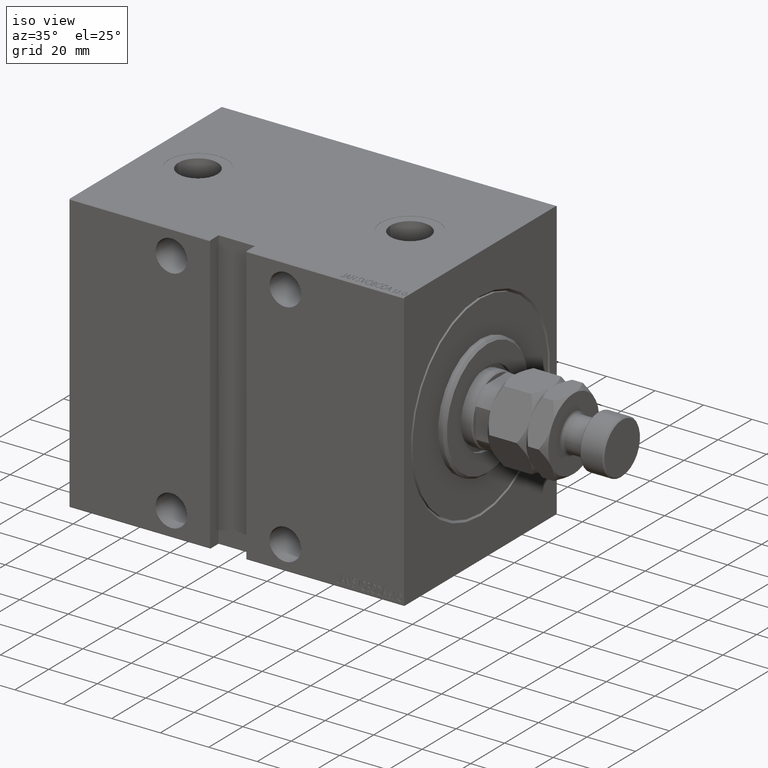
[diagram: clean part render]
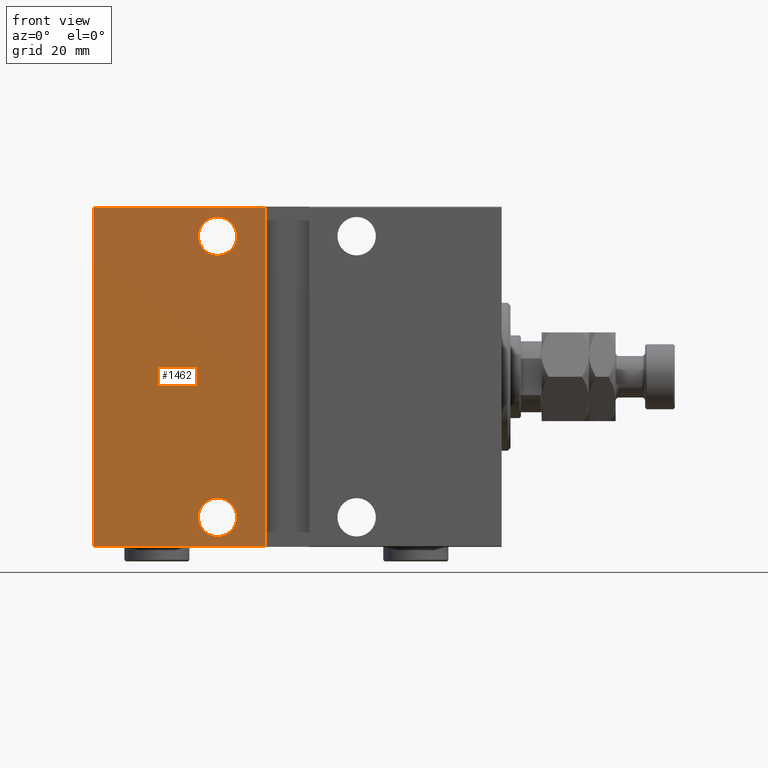
[diagram: tour spotlight — one face highlighted and labeled with its STEP entity id]
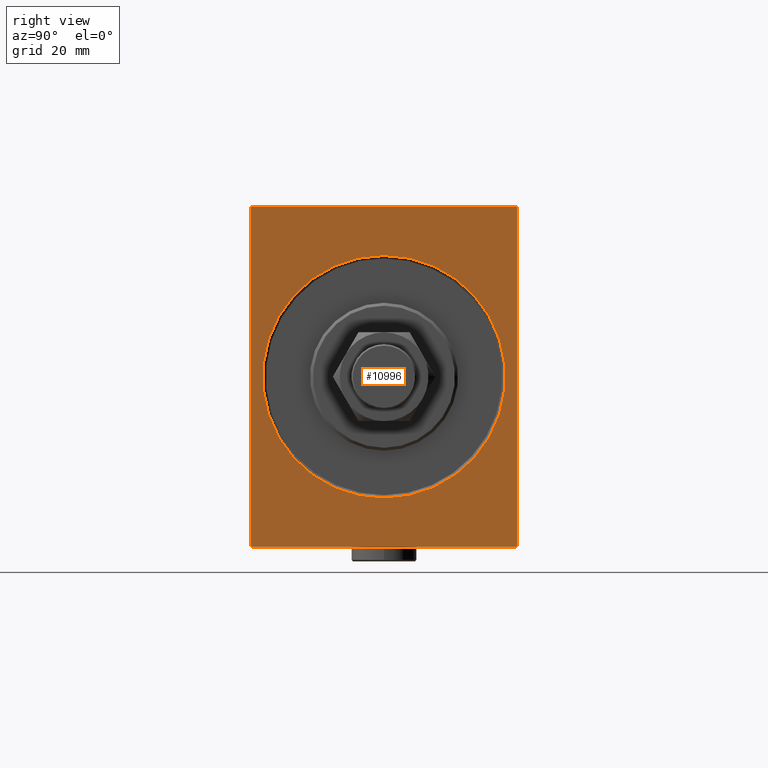
[diagram: tour spotlight — one face highlighted and labeled with its STEP entity id]
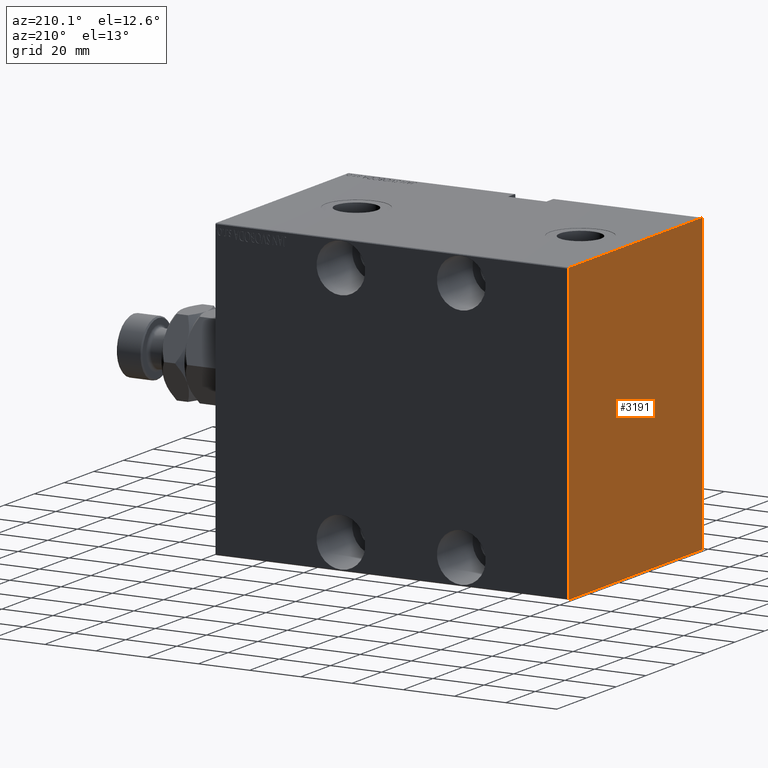
[diagram: tour spotlight — one face highlighted and labeled with its STEP entity id]
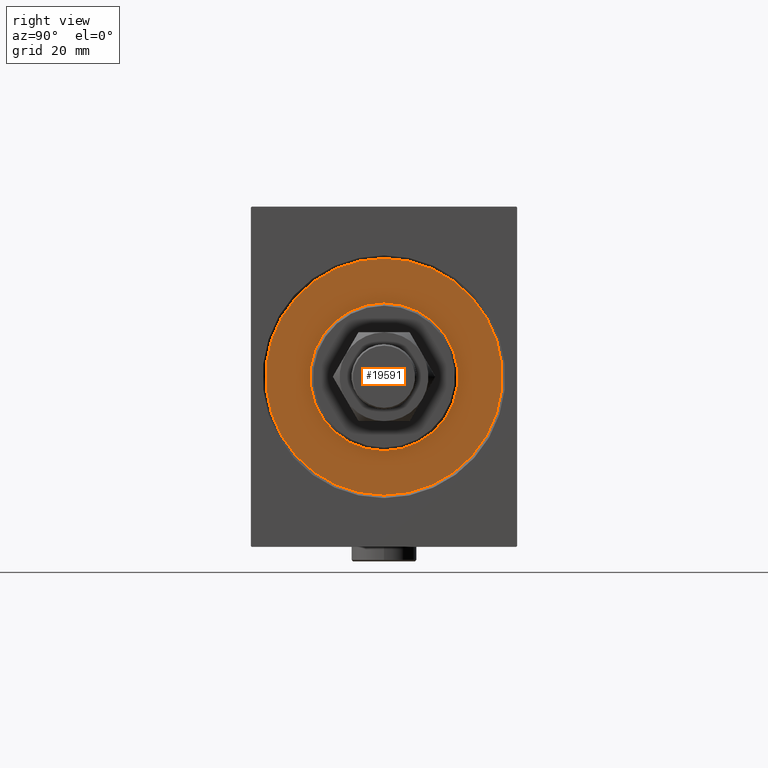
[diagram: tour spotlight — one face highlighted and labeled with its STEP entity id]
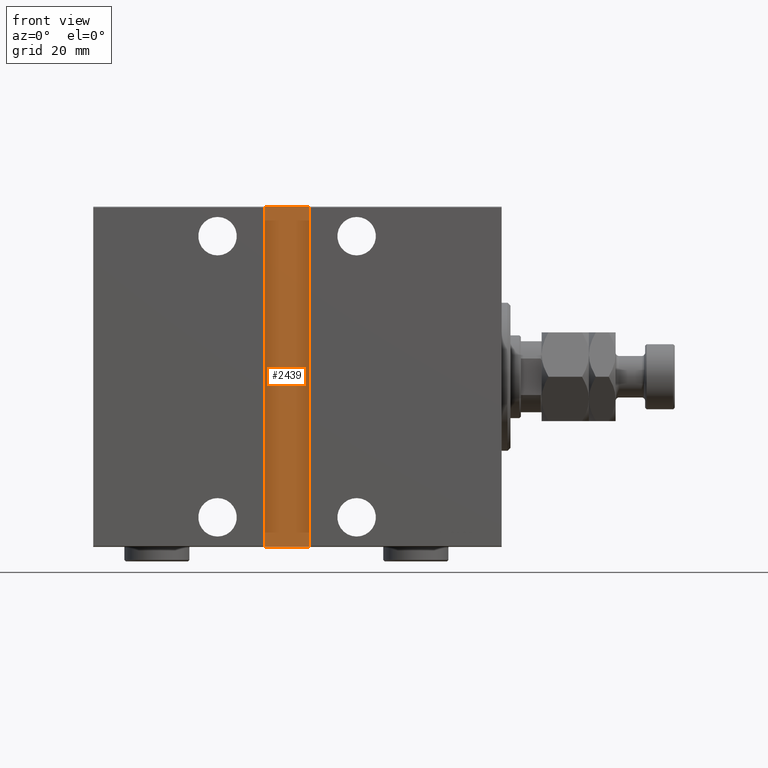
[diagram: tour spotlight — one face highlighted and labeled with its STEP entity id]
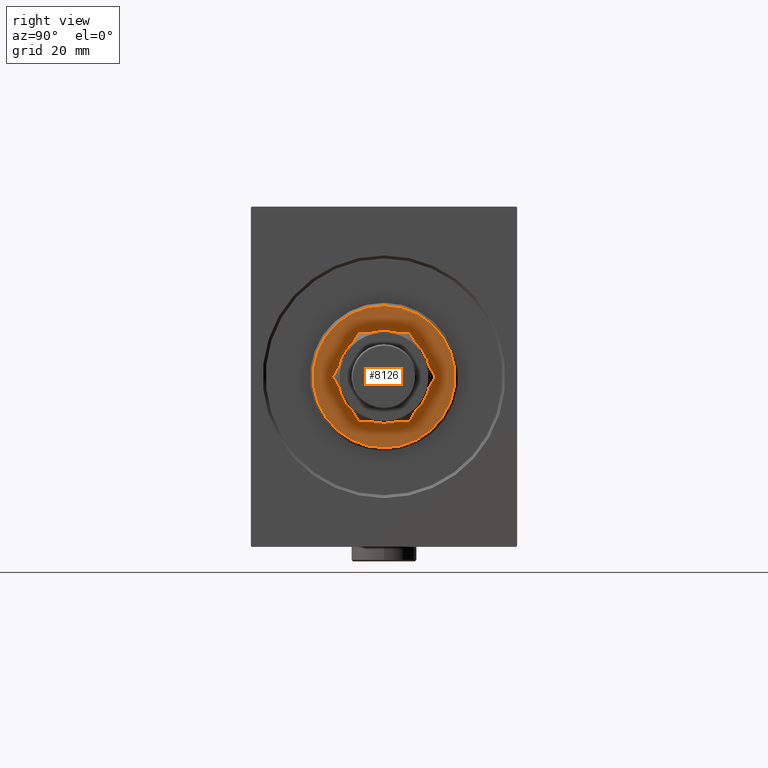
[diagram: tour spotlight — one face highlighted and labeled with its STEP entity id]
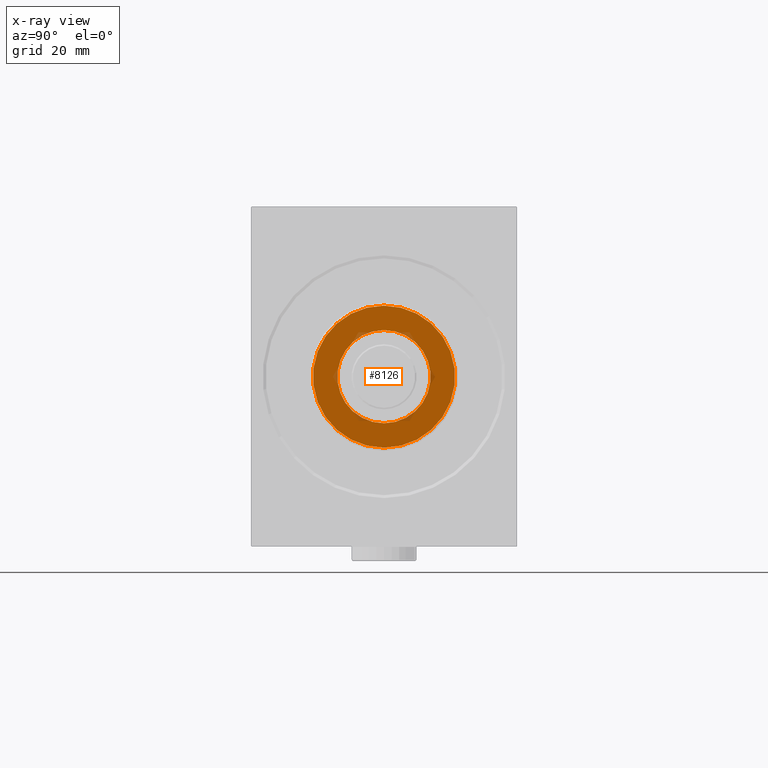
[diagram: x-ray of the same camera — body ghosted, this tour face saturated]
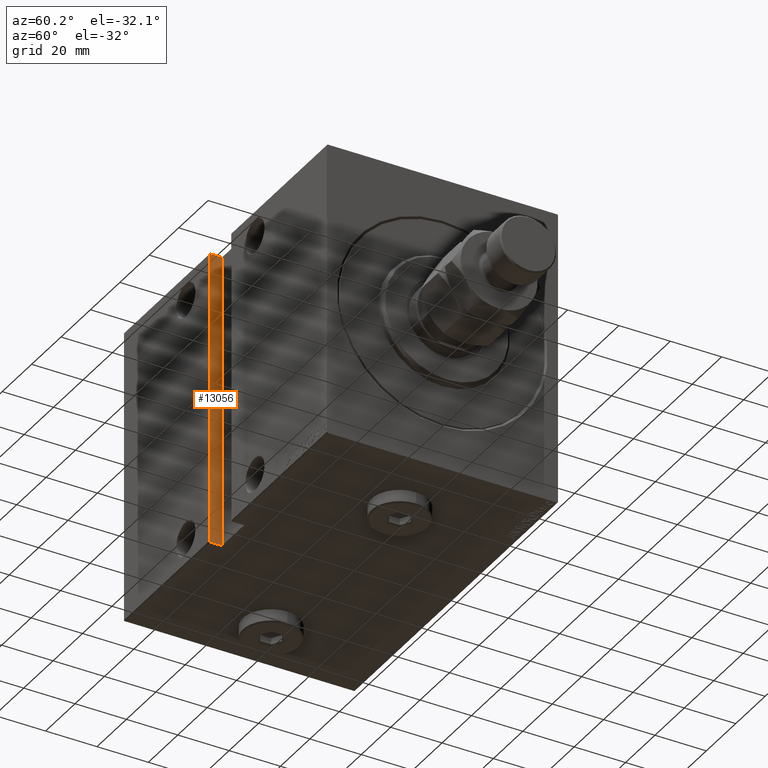
[diagram: tour spotlight — one face highlighted and labeled with its STEP entity id]
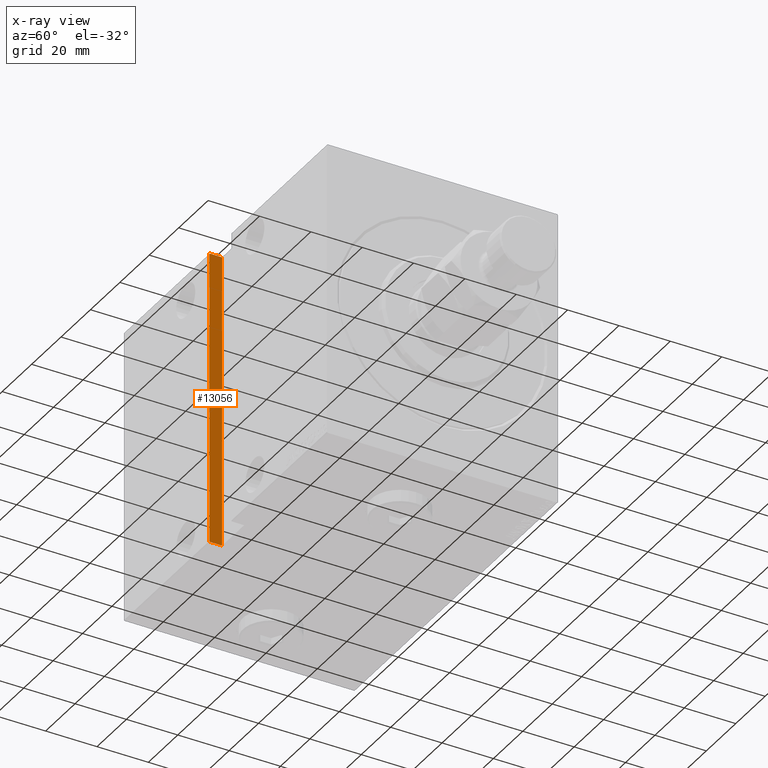
[diagram: x-ray of the same camera — body ghosted, this tour face saturated]
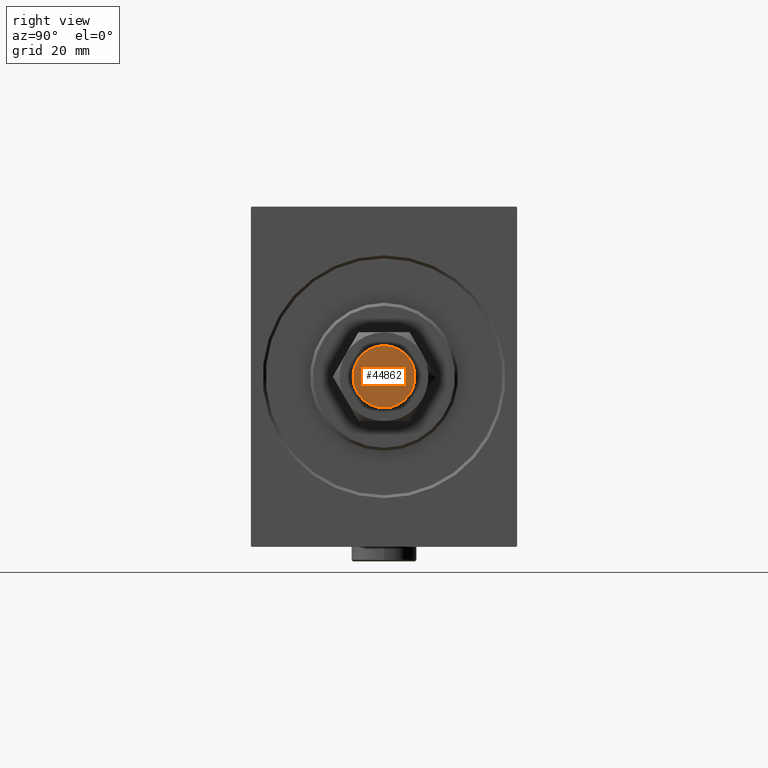
[diagram: tour spotlight — one face highlighted and labeled with its STEP entity id]
A machine part: a face-by-face anatomy tour. The part has 964 B-rep faces; the first image is the clean iso view, then the 8 largest visible faces are spotlighted one at a time (largest first), each with its STEP entity span.

Face 1 — front view, entity #1462. In plain terms, the highlighted planar face has unit normal (0, 1, 0).
Definition (entity closure, byte-faithful):
#300 = EDGE_CURVE ( 'NONE', #32760, #31737, #23237, .T. ) ;
#812 = EDGE_CURVE ( 'NONE', #30409, #31737, #42953, .T. ) ;
#942 = LINE ( 'NONE', #7931, #5033 ) ;
#1383 = CIRCLE ( 'NONE', #27394, 6.500000000000005329 ) ;
#1462 = ADVANCED_FACE ( 'NONE', ( #26685, #16467, #23202 ), #37407, .F. ) ;
#1633 = CARTESIAN_POINT ( 'NONE',  ( 138.0000000000000000, 45.00000000000001421, 57.20000000000001705 ) ) ;
#2003 = DIRECTION ( 'NONE',  ( 0.000000000000000000, -0.000000000000000000, -1.000000000000000000 ) ) ;
#2554 = DIRECTION ( 'NONE',  ( 0.000000000000000000, -1.000000000000000000, 0.000000000000000000 ) ) ;
#3330 = VERTEX_POINT ( 'NONE', #1633 ) ;
#3527 = CARTESIAN_POINT ( 'NONE',  ( 95.99999999999997158, 45.00000000000000711, -47.49999999999998579 ) ) ;
#3717 = ORIENTED_EDGE ( 'NONE', *, *, #300, .F. ) ;
#4007 = ORIENTED_EDGE ( 'NONE', *, *, #44277, .F. ) ;
#4578 = CARTESIAN_POINT ( 'NONE',  ( 95.99999999999997158, 45.00000000000000711, -40.99999999999998579 ) ) ;
#4953 = AXIS2_PLACEMENT_3D ( 'NONE', #5499, #19708, #2003 ) ;
#5033 = VECTOR ( 'NONE', #24292, 1000.000000000000000 ) ;
#5404 = EDGE_CURVE ( 'NONE', #8981, #33978, #45980, .T. ) ;
#5499 = CARTESIAN_POINT ( 'NONE',  ( 138.0000000000000000, 45.00000000000001421, -57.50000000000000711 ) ) ;
#6281 = DIRECTION ( 'NONE',  ( 0.000000000000000000, 0.000000000000000000, -1.000000000000000000 ) ) ;
#7931 = CARTESIAN_POINT ( 'NONE',  ( 138.0000000000000000, 45.00000000000001421, 57.20000000000004547 ) ) ;
#8413 = DIRECTION ( 'NONE',  ( 0.000000000000000000, -1.000000000000000000, 0.000000000000000000 ) ) ;
#8981 = VERTEX_POINT ( 'NONE', #35083 ) ;
#9318 = CARTESIAN_POINT ( 'NONE',  ( 138.0000000000000000, 45.00000000000001421, -57.20000000000001705 ) ) ;
#10771 = ORIENTED_EDGE ( 'NONE', *, *, #812, .T. ) ;
#10983 = DIRECTION ( 'NONE',  ( 0.000000000000000000, -1.000000000000000000, 0.000000000000000000 ) ) ;
#11856 = CARTESIAN_POINT ( 'NONE',  ( 96.00000000000000000, 45.00000000000002132, 41.00000000000000711 ) ) ;
#12271 = CARTESIAN_POINT ( 'NONE',  ( 96.00000000000000000, 45.00000000000002132, 47.50000000000001421 ) ) ;
#12477 = CARTESIAN_POINT ( 'NONE',  ( 79.99999999999997158, 45.00000000000002132, -57.20000000000001705 ) ) ;
#12605 = DIRECTION ( 'NONE',  ( 0.000000000000000000, 0.000000000000000000, -1.000000000000000000 ) ) ;
#13757 = EDGE_LOOP ( 'NONE', ( #4007, #10771, #3717, #14530 ) ) ;
#14530 = ORIENTED_EDGE ( 'NONE', *, *, #16035, .T. ) ;
#15353 = VECTOR ( 'NONE', #22219, 1000.000000000000000 ) ;
#15787 = DIRECTION ( 'NONE',  ( 0.000000000000000000, 0.000000000000000000, -1.000000000000000000 ) ) ;
#16035 = EDGE_CURVE ( 'NONE', #32760, #3330, #942, .T. ) ;
#16467 = FACE_BOUND ( 'NONE', #23816, .T. ) ;
#16785 = ORIENTED_EDGE ( 'NONE', *, *, #5404, .T. ) ;
#16958 = CARTESIAN_POINT ( 'NONE',  ( 96.00000000000000000, 45.00000000000002132, 54.00000000000001421 ) ) ;
#17589 = AXIS2_PLACEMENT_3D ( 'NONE', #36813, #2554, #6281 ) ;
#18002 = DIRECTION ( 'NONE',  ( 1.206764157201255812E-16, 1.206764157201255812E-16, -1.000000000000000000 ) ) ;
#18518 = EDGE_CURVE ( 'NONE', #43126, #23727, #1383, .T. ) ;
#19013 = LINE ( 'NONE', #43461, #24476 ) ;
#19708 = DIRECTION ( 'NONE',  ( 0.000000000000000000, -1.000000000000000000, 0.000000000000000000 ) ) ;
#20784 = ORIENTED_EDGE ( 'NONE', *, *, #18518, .T. ) ;
#21764 = CARTESIAN_POINT ( 'NONE',  ( 138.0000000000000000, 45.00000000000001421, -57.20000000000001705 ) ) ;
#22219 = DIRECTION ( 'NONE',  ( -1.000000000000000000, 0.000000000000000000, 0.000000000000000000 ) ) ;
#23202 = FACE_OUTER_BOUND ( 'NONE', #13757, .T. ) ;
#23237 = LINE ( 'NONE', #37442, #32450 ) ;
#23727 = VERTEX_POINT ( 'NONE', #16958 ) ;
#23816 = EDGE_LOOP ( 'NONE', ( #41140, #20784 ) ) ;
#24292 = DIRECTION ( 'NONE',  ( 1.000000000000000000, 0.000000000000000000, 0.000000000000000000 ) ) ;
#24476 = VECTOR ( 'NONE', #40198, 1000.000000000000000 ) ;
#26685 = FACE_BOUND ( 'NONE', #36251, .T. ) ;
#26917 = DIRECTION ( 'NONE',  ( 0.000000000000000000, -1.000000000000000000, 0.000000000000000000 ) ) ;
#27394 = AXIS2_PLACEMENT_3D ( 'NONE', #12271, #26917, #15787 ) ;
#30409 = VERTEX_POINT ( 'NONE', #9318 ) ;
#31737 = VERTEX_POINT ( 'NONE', #12477 ) ;
#32450 = VECTOR ( 'NONE', #18002, 1000.000000000000000 ) ;
#32591 = AXIS2_PLACEMENT_3D ( 'NONE', #3527, #10983, #35209 ) ;
#32760 = VERTEX_POINT ( 'NONE', #45528 ) ;
#33414 = EDGE_CURVE ( 'NONE', #33978, #8981, #37650, .T. ) ;
#33978 = VERTEX_POINT ( 'NONE', #4578 ) ;
#35083 = CARTESIAN_POINT ( 'NONE',  ( 95.99999999999997158, 45.00000000000000711, -53.99999999999999289 ) ) ;
#35209 = DIRECTION ( 'NONE',  ( 0.000000000000000000, 0.000000000000000000, -1.000000000000000000 ) ) ;
#36251 = EDGE_LOOP ( 'NONE', ( #40524, #16785 ) ) ;
#36813 = CARTESIAN_POINT ( 'NONE',  ( 95.99999999999997158, 45.00000000000000711, -47.49999999999998579 ) ) ;
#37407 = PLANE ( 'NONE',  #4953 ) ;
#37442 = CARTESIAN_POINT ( 'NONE',  ( 79.99999999999997158, 45.00000000000002132, -57.50000000000010658 ) ) ;
#37650 = CIRCLE ( 'NONE', #17589, 6.500000000000005329 ) ;
#40071 = CIRCLE ( 'NONE', #46034, 6.500000000000005329 ) ;
#40198 = DIRECTION ( 'NONE',  ( 0.000000000000000000, 0.000000000000000000, 1.000000000000000000 ) ) ;
#40524 = ORIENTED_EDGE ( 'NONE', *, *, #33414, .T. ) ;
#41140 = ORIENTED_EDGE ( 'NONE', *, *, #44091, .T. ) ;
#41217 = CARTESIAN_POINT ( 'NONE',  ( 96.00000000000000000, 45.00000000000002132, 47.50000000000001421 ) ) ;
#42953 = LINE ( 'NONE', #21764, #15353 ) ;
#43126 = VERTEX_POINT ( 'NONE', #11856 ) ;
#43461 = CARTESIAN_POINT ( 'NONE',  ( 138.0000000000000000, 45.00000000000001421, -57.50000000000000711 ) ) ;
#44091 = EDGE_CURVE ( 'NONE', #23727, #43126, #40071, .T. ) ;
#44277 = EDGE_CURVE ( 'NONE', #30409, #3330, #19013, .T. ) ;
#45528 = CARTESIAN_POINT ( 'NONE',  ( 79.99999999999995737, 45.00000000000000711, 57.20000000000004547 ) ) ;
#45980 = CIRCLE ( 'NONE', #32591, 6.500000000000005329 ) ;
#46034 = AXIS2_PLACEMENT_3D ( 'NONE', #41217, #8413, #12605 ) ;

Face 2 — right view, entity #10996. In plain terms, the highlighted planar face has unit normal (-1, 0, 0).
Definition (entity closure, byte-faithful):
#2887 = DIRECTION ( 'NONE',  ( -0.000000000000000000, 0.000000000000000000, -1.000000000000000000 ) ) ;
#3116 = CARTESIAN_POINT ( 'NONE',  ( 0.000000000000000000, 0.000000000000000000, 0.000000000000000000 ) ) ;
#3470 = ORIENTED_EDGE ( 'NONE', *, *, #23250, .T. ) ;
#3659 = VERTEX_POINT ( 'NONE', #27660 ) ;
#3911 = EDGE_CURVE ( 'NONE', #26100, #36475, #33923, .T. ) ;
#4770 = VECTOR ( 'NONE', #28352, 1000.000000000000114 ) ;
#4925 = ORIENTED_EDGE ( 'NONE', *, *, #26993, .F. ) ;
#5306 = CARTESIAN_POINT ( 'NONE',  ( 0.000000000000000000, 44.69999999999998863, -57.50000000000000711 ) ) ;
#6419 = CARTESIAN_POINT ( 'NONE',  ( 0.000000000000000000, 0.000000000000000000, 0.000000000000000000 ) ) ;
#6663 = DIRECTION ( 'NONE',  ( 0.000000000000000000, 0.000000000000000000, -1.000000000000000000 ) ) ;
#7664 = VERTEX_POINT ( 'NONE', #28128 ) ;
#8221 = CARTESIAN_POINT ( 'NONE',  ( 0.000000000000000000, 45.00000000000001421, -57.20000000000001705 ) ) ;
#8864 = VECTOR ( 'NONE', #43128, 1000.000000000000000 ) ;
#9196 = CARTESIAN_POINT ( 'NONE',  ( 0.000000000000000000, -44.70000000000000284, -57.50000000000002132 ) ) ;
#9816 = EDGE_CURVE ( 'NONE', #11287, #17991, #12761, .T. ) ;
#9877 = DIRECTION ( 'NONE',  ( 0.000000000000000000, -0.7071067811865802133, 0.7071067811865149322 ) ) ;
#10692 = DIRECTION ( 'NONE',  ( 1.000000000000000000, 0.000000000000000000, -0.000000000000000000 ) ) ;
#10719 = LINE ( 'NONE', #39117, #25208 ) ;
#10996 = ADVANCED_FACE ( 'NONE', ( #26879, #20830 ), #27561, .F. ) ;
#11129 = LINE ( 'NONE', #46056, #4770 ) ;
#11287 = VERTEX_POINT ( 'NONE', #23560 ) ;
#11850 = VERTEX_POINT ( 'NONE', #15719 ) ;
#12254 = VECTOR ( 'NONE', #26580, 1000.000000000000114 ) ;
#12761 = CIRCLE ( 'NONE', #14294, 41.00000000000000711 ) ;
#12871 = ORIENTED_EDGE ( 'NONE', *, *, #23510, .F. ) ;
#13226 = ORIENTED_EDGE ( 'NONE', *, *, #9816, .T. ) ;
#13298 = VERTEX_POINT ( 'NONE', #38618 ) ;
#14018 = DIRECTION ( 'NONE',  ( 0.000000000000000000, 1.000000000000000000, 1.541976423090495140E-16 ) ) ;
#14068 = ORIENTED_EDGE ( 'NONE', *, *, #39716, .T. ) ;
#14294 = AXIS2_PLACEMENT_3D ( 'NONE', #6419, #16918, #6663 ) ;
#14339 = LINE ( 'NONE', #42700, #31269 ) ;
#14979 = EDGE_LOOP ( 'NONE', ( #14068, #13226 ) ) ;
#15719 = CARTESIAN_POINT ( 'NONE',  ( 0.000000000000000000, -45.00000000000000000, 57.19999999999997442 ) ) ;
#16873 = LINE ( 'NONE', #9196, #22957 ) ;
#16918 = DIRECTION ( 'NONE',  ( 1.000000000000000000, 0.000000000000000000, -0.000000000000000000 ) ) ;
#17991 = VERTEX_POINT ( 'NONE', #33356 ) ;
#18194 = EDGE_CURVE ( 'NONE', #13298, #39778, #34967, .T. ) ;
#19144 = AXIS2_PLACEMENT_3D ( 'NONE', #36520, #10692, #35851 ) ;
#20830 = FACE_OUTER_BOUND ( 'NONE', #40472, .T. ) ;
#21450 = CARTESIAN_POINT ( 'NONE',  ( 0.000000000000000000, -45.00000000000000000, -57.50000000000002132 ) ) ;
#21928 = LINE ( 'NONE', #39409, #8864 ) ;
#22803 = CARTESIAN_POINT ( 'NONE',  ( 0.000000000000000000, -44.69999999999994600, 57.49999999999999289 ) ) ;
#22957 = VECTOR ( 'NONE', #9877, 999.9999999999998863 ) ;
#23097 = ORIENTED_EDGE ( 'NONE', *, *, #3911, .F. ) ;
#23250 = EDGE_CURVE ( 'NONE', #7664, #36475, #21928, .T. ) ;
#23510 = EDGE_CURVE ( 'NONE', #7664, #38411, #10719, .T. ) ;
#23560 = CARTESIAN_POINT ( 'NONE',  ( 0.000000000000000000, 5.021051876504148963E-15, -41.00000000000000711 ) ) ;
#24070 = DIRECTION ( 'NONE',  ( 1.000000000000000000, 0.000000000000000000, -0.000000000000000000 ) ) ;
#24111 = CARTESIAN_POINT ( 'NONE',  ( 0.000000000000000000, 45.00000000000001421, -57.50000000000000711 ) ) ;
#24357 = VECTOR ( 'NONE', #30659, 1000.000000000000000 ) ;
#24665 = ORIENTED_EDGE ( 'NONE', *, *, #18194, .F. ) ;
#24756 = ORIENTED_EDGE ( 'NONE', *, *, #27728, .T. ) ;
#25208 = VECTOR ( 'NONE', #35879, 1000.000000000000000 ) ;
#26100 = VERTEX_POINT ( 'NONE', #8221 ) ;
#26348 = CARTESIAN_POINT ( 'NONE',  ( 0.000000000000000000, 45.00000000000001421, 57.20000000000001705 ) ) ;
#26580 = DIRECTION ( 'NONE',  ( -0.000000000000000000, -0.7071067811865474617, -0.7071067811865474617 ) ) ;
#26879 = FACE_BOUND ( 'NONE', #14979, .T. ) ;
#26993 = EDGE_CURVE ( 'NONE', #11850, #3659, #14339, .T. ) ;
#27561 = PLANE ( 'NONE',  #29427 ) ;
#27660 = CARTESIAN_POINT ( 'NONE',  ( 0.000000000000000000, -45.00000000000000000, -57.20000000000003126 ) ) ;
#27728 = EDGE_CURVE ( 'NONE', #11850, #38411, #11129, .T. ) ;
#28128 = CARTESIAN_POINT ( 'NONE',  ( 0.000000000000000000, 44.70000000000001705, 57.50000000000001421 ) ) ;
#28352 = DIRECTION ( 'NONE',  ( -0.000000000000000000, 0.7071067811865474617, 0.7071067811865474617 ) ) ;
#28805 = CIRCLE ( 'NONE', #19144, 41.00000000000000711 ) ;
#29427 = AXIS2_PLACEMENT_3D ( 'NONE', #3116, #24070, #2887 ) ;
#29942 = EDGE_CURVE ( 'NONE', #26100, #39778, #41246, .T. ) ;
#30555 = CARTESIAN_POINT ( 'NONE',  ( 0.000000000000000000, 45.00000000000001421, -57.20000000000001705 ) ) ;
#30659 = DIRECTION ( 'NONE',  ( 0.000000000000000000, 0.000000000000000000, 1.000000000000000000 ) ) ;
#31269 = VECTOR ( 'NONE', #42234, 1000.000000000000000 ) ;
#32647 = VECTOR ( 'NONE', #14018, 1000.000000000000000 ) ;
#33356 = CARTESIAN_POINT ( 'NONE',  ( 0.000000000000000000, 0.000000000000000000, 41.00000000000000711 ) ) ;
#33923 = LINE ( 'NONE', #24111, #24357 ) ;
#34967 = LINE ( 'NONE', #21450, #32647 ) ;
#35851 = DIRECTION ( 'NONE',  ( 0.000000000000000000, 0.000000000000000000, -1.000000000000000000 ) ) ;
#35879 = DIRECTION ( 'NONE',  ( 0.000000000000000000, -1.000000000000000000, -2.312964634635742957E-16 ) ) ;
#36475 = VERTEX_POINT ( 'NONE', #26348 ) ;
#36520 = CARTESIAN_POINT ( 'NONE',  ( 0.000000000000000000, 0.000000000000000000, 0.000000000000000000 ) ) ;
#38411 = VERTEX_POINT ( 'NONE', #22803 ) ;
#38618 = CARTESIAN_POINT ( 'NONE',  ( 0.000000000000000000, -44.70000000000000284, -57.50000000000002132 ) ) ;
#39117 = CARTESIAN_POINT ( 'NONE',  ( 0.000000000000000000, 45.00000000000001421, 57.50000000000001421 ) ) ;
#39409 = CARTESIAN_POINT ( 'NONE',  ( 0.000000000000000000, 44.70000000000001705, 57.50000000000001421 ) ) ;
#39716 = EDGE_CURVE ( 'NONE', #17991, #11287, #28805, .T. ) ;
#39778 = VERTEX_POINT ( 'NONE', #5306 ) ;
#40013 = ORIENTED_EDGE ( 'NONE', *, *, #29942, .T. ) ;
#40201 = EDGE_CURVE ( 'NONE', #13298, #3659, #16873, .T. ) ;
#40472 = EDGE_LOOP ( 'NONE', ( #12871, #3470, #23097, #40013, #24665, #43578, #4925, #24756 ) ) ;
#41246 = LINE ( 'NONE', #30555, #12254 ) ;
#42234 = DIRECTION ( 'NONE',  ( 0.000000000000000000, 0.000000000000000000, -1.000000000000000000 ) ) ;
#42700 = CARTESIAN_POINT ( 'NONE',  ( 0.000000000000000000, -45.00000000000000000, 57.49999999999999289 ) ) ;
#43128 = DIRECTION ( 'NONE',  ( -0.000000000000000000, 0.7071067811865721087, -0.7071067811865230368 ) ) ;
#43578 = ORIENTED_EDGE ( 'NONE', *, *, #40201, .T. ) ;
#46056 = CARTESIAN_POINT ( 'NONE',  ( 0.000000000000000000, -45.00000000000000000, 57.19999999999997442 ) ) ;

Face 3 — auxiliary view, entity #3191. In plain terms, the highlighted planar face has unit normal (-1, 0, 0).
Definition (entity closure, byte-faithful):
#611 = VERTEX_POINT ( 'NONE', #16225 ) ;
#940 = DIRECTION ( 'NONE',  ( 1.000000000000000000, 0.000000000000000000, -0.000000000000000000 ) ) ;
#1107 = ORIENTED_EDGE ( 'NONE', *, *, #8242, .T. ) ;
#1633 = CARTESIAN_POINT ( 'NONE',  ( 138.0000000000000000, 45.00000000000001421, 57.20000000000001705 ) ) ;
#2158 = ORIENTED_EDGE ( 'NONE', *, *, #10234, .T. ) ;
#3155 = DIRECTION ( 'NONE',  ( 0.000000000000000000, -1.000000000000000000, -2.312964634635742957E-16 ) ) ;
#3191 = ADVANCED_FACE ( 'NONE', ( #10746 ), #25166, .T. ) ;
#3330 = VERTEX_POINT ( 'NONE', #1633 ) ;
#3852 = CARTESIAN_POINT ( 'NONE',  ( 138.0000000000000000, 45.00000000000001421, 57.50000000000001421 ) ) ;
#3975 = DIRECTION ( 'NONE',  ( -0.000000000000000000, 0.000000000000000000, -1.000000000000000000 ) ) ;
#4202 = DIRECTION ( 'NONE',  ( 0.000000000000000000, 0.000000000000000000, -1.000000000000000000 ) ) ;
#4492 = CARTESIAN_POINT ( 'NONE',  ( 138.0000000000000000, -51.09999999999998721, 51.09999999999998721 ) ) ;
#4602 = CARTESIAN_POINT ( 'NONE',  ( 138.0000000000000000, 44.69999999999998863, -57.50000000000000711 ) ) ;
#5554 = EDGE_CURVE ( 'NONE', #8632, #6914, #8170, .T. ) ;
#6410 = LINE ( 'NONE', #20627, #18586 ) ;
#6914 = VERTEX_POINT ( 'NONE', #25086 ) ;
#8170 = LINE ( 'NONE', #8394, #10279 ) ;
#8242 = EDGE_CURVE ( 'NONE', #3330, #45456, #31293, .T. ) ;
#8394 = CARTESIAN_POINT ( 'NONE',  ( 138.0000000000000000, -45.00000000000000000, 57.49999999999999289 ) ) ;
#8632 = VERTEX_POINT ( 'NONE', #40283 ) ;
#8839 = LINE ( 'NONE', #29561, #28028 ) ;
#9318 = CARTESIAN_POINT ( 'NONE',  ( 138.0000000000000000, 45.00000000000001421, -57.20000000000001705 ) ) ;
#10227 = VECTOR ( 'NONE', #11260, 999.9999999999998863 ) ;
#10234 = EDGE_CURVE ( 'NONE', #22276, #8632, #29176, .T. ) ;
#10279 = VECTOR ( 'NONE', #4202, 1000.000000000000000 ) ;
#10746 = FACE_OUTER_BOUND ( 'NONE', #28177, .T. ) ;
#11260 = DIRECTION ( 'NONE',  ( -0.000000000000000000, 0.7071067811865802133, -0.7071067811865149322 ) ) ;
#11301 = VECTOR ( 'NONE', #29866, 1000.000000000000114 ) ;
#13601 = DIRECTION ( 'NONE',  ( -0.000000000000000000, -0.7071067811865721087, 0.7071067811865230368 ) ) ;
#14270 = EDGE_CURVE ( 'NONE', #38711, #30409, #8839, .T. ) ;
#14826 = EDGE_CURVE ( 'NONE', #6914, #611, #39430, .T. ) ;
#15756 = ORIENTED_EDGE ( 'NONE', *, *, #14826, .T. ) ;
#15843 = DIRECTION ( 'NONE',  ( -0.000000000000000000, 0.7071067811865474617, 0.7071067811865474617 ) ) ;
#16225 = CARTESIAN_POINT ( 'NONE',  ( 138.0000000000000000, -44.70000000000000284, -57.50000000000002132 ) ) ;
#16837 = ORIENTED_EDGE ( 'NONE', *, *, #24742, .T. ) ;
#17067 = ORIENTED_EDGE ( 'NONE', *, *, #5554, .T. ) ;
#17306 = ORIENTED_EDGE ( 'NONE', *, *, #28894, .T. ) ;
#18586 = VECTOR ( 'NONE', #45311, 1000.000000000000000 ) ;
#19013 = LINE ( 'NONE', #43461, #24476 ) ;
#20627 = CARTESIAN_POINT ( 'NONE',  ( 138.0000000000000000, -45.00000000000000000, -57.50000000000002132 ) ) ;
#22276 = VERTEX_POINT ( 'NONE', #24840 ) ;
#24476 = VECTOR ( 'NONE', #40198, 1000.000000000000000 ) ;
#24742 = EDGE_CURVE ( 'NONE', #611, #38711, #6410, .T. ) ;
#24754 = CARTESIAN_POINT ( 'NONE',  ( 138.0000000000000000, -51.09999999999794795, -51.10000000000267306 ) ) ;
#24840 = CARTESIAN_POINT ( 'NONE',  ( 138.0000000000000000, -44.69999999999994600, 57.49999999999999289 ) ) ;
#25086 = CARTESIAN_POINT ( 'NONE',  ( 138.0000000000000000, -45.00000000000000000, -57.20000000000003126 ) ) ;
#25166 = PLANE ( 'NONE',  #30287 ) ;
#27062 = ORIENTED_EDGE ( 'NONE', *, *, #44277, .T. ) ;
#28028 = VECTOR ( 'NONE', #15843, 1000.000000000000114 ) ;
#28177 = EDGE_LOOP ( 'NONE', ( #16837, #43763, #27062, #1107, #17306, #2158, #17067, #15756 ) ) ;
#28894 = EDGE_CURVE ( 'NONE', #45456, #22276, #35774, .T. ) ;
#29176 = LINE ( 'NONE', #4492, #11301 ) ;
#29561 = CARTESIAN_POINT ( 'NONE',  ( 138.0000000000000000, 51.10000000000000853, -51.10000000000000853 ) ) ;
#29866 = DIRECTION ( 'NONE',  ( -0.000000000000000000, -0.7071067811865474617, -0.7071067811865474617 ) ) ;
#30287 = AXIS2_PLACEMENT_3D ( 'NONE', #32172, #940, #3975 ) ;
#30409 = VERTEX_POINT ( 'NONE', #9318 ) ;
#31293 = LINE ( 'NONE', #45483, #34242 ) ;
#31898 = CARTESIAN_POINT ( 'NONE',  ( 138.0000000000000000, 44.70000000000001705, 57.50000000000001421 ) ) ;
#32172 = CARTESIAN_POINT ( 'NONE',  ( 138.0000000000000000, 0.000000000000000000, 0.000000000000000000 ) ) ;
#34242 = VECTOR ( 'NONE', #13601, 1000.000000000000000 ) ;
#35774 = LINE ( 'NONE', #3852, #41987 ) ;
#38711 = VERTEX_POINT ( 'NONE', #4602 ) ;
#39430 = LINE ( 'NONE', #24754, #10227 ) ;
#40198 = DIRECTION ( 'NONE',  ( 0.000000000000000000, 0.000000000000000000, 1.000000000000000000 ) ) ;
#40283 = CARTESIAN_POINT ( 'NONE',  ( 138.0000000000000000, -45.00000000000000000, 57.19999999999997442 ) ) ;
#41987 = VECTOR ( 'NONE', #3155, 1000.000000000000000 ) ;
#43461 = CARTESIAN_POINT ( 'NONE',  ( 138.0000000000000000, 45.00000000000001421, -57.50000000000000711 ) ) ;
#43763 = ORIENTED_EDGE ( 'NONE', *, *, #14270, .T. ) ;
#44277 = EDGE_CURVE ( 'NONE', #30409, #3330, #19013, .T. ) ;
#45311 = DIRECTION ( 'NONE',  ( 0.000000000000000000, 1.000000000000000000, 1.541976423090495140E-16 ) ) ;
#45456 = VERTEX_POINT ( 'NONE', #31898 ) ;
#45483 = CARTESIAN_POINT ( 'NONE',  ( 138.0000000000000000, 51.09999999999846665, 51.10000000000201936 ) ) ;

Face 4 — right view, entity #19591. In plain terms, the highlighted planar face has unit normal (1, 0, 0).
Definition (entity closure, byte-faithful):
#630 = ORIENTED_EDGE ( 'NONE', *, *, #33668, .T. ) ;
#755 = CIRCLE ( 'NONE', #33469, 40.00000000000000000 ) ;
#1594 = CARTESIAN_POINT ( 'NONE',  ( 0.000000000000000000, 0.000000000000000000, 0.000000000000000000 ) ) ;
#2589 = DIRECTION ( 'NONE',  ( 0.000000000000000000, 0.000000000000000000, -1.000000000000000000 ) ) ;
#2967 = ORIENTED_EDGE ( 'NONE', *, *, #35532, .F. ) ;
#4235 = AXIS2_PLACEMENT_3D ( 'NONE', #9969, #13245, #28366 ) ;
#4846 = DIRECTION ( 'NONE',  ( 0.000000000000000000, 0.000000000000000000, -1.000000000000000000 ) ) ;
#8570 = DIRECTION ( 'NONE',  ( 1.000000000000000000, -0.000000000000000000, 0.000000000000000000 ) ) ;
#8657 = AXIS2_PLACEMENT_3D ( 'NONE', #20437, #31386, #10431 ) ;
#9203 = VERTEX_POINT ( 'NONE', #44334 ) ;
#9600 = DIRECTION ( 'NONE',  ( 1.000000000000000000, 0.000000000000000000, 0.000000000000000000 ) ) ;
#9969 = CARTESIAN_POINT ( 'NONE',  ( 0.000000000000000000, 0.000000000000000000, 0.000000000000000000 ) ) ;
#10056 = AXIS2_PLACEMENT_3D ( 'NONE', #1594, #8570, #4846 ) ;
#10339 = DIRECTION ( 'NONE',  ( 1.000000000000000000, 0.000000000000000000, 0.000000000000000000 ) ) ;
#10431 = DIRECTION ( 'NONE',  ( 0.000000000000000000, 0.000000000000000000, -1.000000000000000000 ) ) ;
#13245 = DIRECTION ( 'NONE',  ( 1.000000000000000000, -0.000000000000000000, 0.000000000000000000 ) ) ;
#14094 = DIRECTION ( 'NONE',  ( 0.000000000000000000, 0.000000000000000000, -1.000000000000000000 ) ) ;
#14634 = ORIENTED_EDGE ( 'NONE', *, *, #30592, .F. ) ;
#16065 = CARTESIAN_POINT ( 'NONE',  ( 0.000000000000000000, 0.000000000000000000, 25.00000000000000000 ) ) ;
#16942 = AXIS2_PLACEMENT_3D ( 'NONE', #30564, #9600, #2589 ) ;
#18279 = EDGE_LOOP ( 'NONE', ( #14634, #2967 ) ) ;
#19591 = ADVANCED_FACE ( 'NONE', ( #27507, #37776 ), #27732, .T. ) ;
#20437 = CARTESIAN_POINT ( 'NONE',  ( 0.000000000000000000, 0.000000000000000000, 0.000000000000000000 ) ) ;
#21737 = CARTESIAN_POINT ( 'NONE',  ( 0.000000000000000000, 0.000000000000000000, 0.000000000000000000 ) ) ;
#22670 = EDGE_LOOP ( 'NONE', ( #24251, #630 ) ) ;
#24251 = ORIENTED_EDGE ( 'NONE', *, *, #26052, .T. ) ;
#26052 = EDGE_CURVE ( 'NONE', #9203, #41565, #755, .T. ) ;
#27254 = CIRCLE ( 'NONE', #8657, 40.00000000000000000 ) ;
#27507 = FACE_OUTER_BOUND ( 'NONE', #22670, .T. ) ;
#27732 = PLANE ( 'NONE',  #16942 ) ;
#28366 = DIRECTION ( 'NONE',  ( 0.000000000000000000, 0.000000000000000000, -1.000000000000000000 ) ) ;
#29540 = CIRCLE ( 'NONE', #4235, 25.00000000000000000 ) ;
#30564 = CARTESIAN_POINT ( 'NONE',  ( 0.000000000000000000, 0.000000000000000000, 0.000000000000000000 ) ) ;
#30592 = EDGE_CURVE ( 'NONE', #38463, #36867, #30860, .T. ) ;
#30665 = CARTESIAN_POINT ( 'NONE',  ( 0.000000000000000000, 3.061616997868383043E-15, -25.00000000000000000 ) ) ;
#30860 = CIRCLE ( 'NONE', #10056, 25.00000000000000000 ) ;
#31386 = DIRECTION ( 'NONE',  ( 1.000000000000000000, 0.000000000000000000, 0.000000000000000000 ) ) ;
#33469 = AXIS2_PLACEMENT_3D ( 'NONE', #21737, #10339, #14094 ) ;
#33668 = EDGE_CURVE ( 'NONE', #41565, #9203, #27254, .T. ) ;
#35532 = EDGE_CURVE ( 'NONE', #36867, #38463, #29540, .T. ) ;
#36867 = VERTEX_POINT ( 'NONE', #30665 ) ;
#37776 = FACE_BOUND ( 'NONE', #18279, .T. ) ;
#38463 = VERTEX_POINT ( 'NONE', #16065 ) ;
#41565 = VERTEX_POINT ( 'NONE', #44080 ) ;
#44080 = CARTESIAN_POINT ( 'NONE',  ( 0.000000000000000000, 4.898587196589413026E-15, 40.00000000000000000 ) ) ;
#44334 = CARTESIAN_POINT ( 'NONE',  ( 0.000000000000000000, 0.000000000000000000, -40.00000000000000000 ) ) ;

Face 5 — front view, entity #2439. In plain terms, the highlighted planar face has unit normal (-0, 1, -0).
Definition (entity closure, byte-faithful):
#1493 = CARTESIAN_POINT ( 'NONE',  ( 64.99999999999998579, 40.00000000000002132, -57.50000000000010658 ) ) ;
#1732 = DIRECTION ( 'NONE',  ( 5.582405635905037091E-32, -1.000000000000000000, -1.206764157201255812E-16 ) ) ;
#2015 = CARTESIAN_POINT ( 'NONE',  ( 79.99999999999997158, 40.00000000000002132, -57.50000000000010658 ) ) ;
#2409 = LINE ( 'NONE', #21040, #28065 ) ;
#2439 = ADVANCED_FACE ( 'NONE', ( #33653 ), #44341, .F. ) ;
#2630 = DIRECTION ( 'NONE',  ( 1.000000000000000000, -0.000000000000000000, 4.625929269271494788E-16 ) ) ;
#5667 = DIRECTION ( 'NONE',  ( 0.000000000000000000, -1.206764157201255812E-16, 1.000000000000000000 ) ) ;
#5840 = VECTOR ( 'NONE', #30441, 1000.000000000000000 ) ;
#6159 = VERTEX_POINT ( 'NONE', #34826 ) ;
#9169 = LINE ( 'NONE', #1493, #39114 ) ;
#9373 = CARTESIAN_POINT ( 'NONE',  ( 79.99999999999997158, 40.00000000000002132, -57.50000000000010658 ) ) ;
#11833 = EDGE_CURVE ( 'NONE', #35455, #31546, #9169, .T. ) ;
#13981 = ORIENTED_EDGE ( 'NONE', *, *, #38834, .T. ) ;
#14715 = EDGE_CURVE ( 'NONE', #31546, #6159, #2409, .T. ) ;
#15956 = DIRECTION ( 'NONE',  ( 0.000000000000000000, 1.206764157201255812E-16, -1.000000000000000000 ) ) ;
#18704 = CARTESIAN_POINT ( 'NONE',  ( 64.99999999999998579, 40.00000000000002132, -57.50000000000010658 ) ) ;
#21040 = CARTESIAN_POINT ( 'NONE',  ( 79.99999999999995737, 40.00000000000000711, 57.50000000000002132 ) ) ;
#27689 = VERTEX_POINT ( 'NONE', #31614 ) ;
#28065 = VECTOR ( 'NONE', #2630, 1000.000000000000000 ) ;
#28339 = EDGE_LOOP ( 'NONE', ( #40353, #29622, #13981, #32146 ) ) ;
#29622 = ORIENTED_EDGE ( 'NONE', *, *, #14715, .T. ) ;
#30441 = DIRECTION ( 'NONE',  ( 1.206764157201255812E-16, 1.206764157201255812E-16, -1.000000000000000000 ) ) ;
#31382 = CARTESIAN_POINT ( 'NONE',  ( 64.99999999999998579, 40.00000000000000711, 57.50000000000001421 ) ) ;
#31546 = VERTEX_POINT ( 'NONE', #31382 ) ;
#31614 = CARTESIAN_POINT ( 'NONE',  ( 79.99999999999997158, 40.00000000000002132, -57.50000000000000711 ) ) ;
#32146 = ORIENTED_EDGE ( 'NONE', *, *, #45879, .T. ) ;
#33420 = CARTESIAN_POINT ( 'NONE',  ( -2.512082536157267446E-30, 40.00000000000001421, 4.799630170686813290E-15 ) ) ;
#33653 = FACE_OUTER_BOUND ( 'NONE', #28339, .T. ) ;
#34826 = CARTESIAN_POINT ( 'NONE',  ( 79.99999999999995737, 40.00000000000000711, 57.50000000000002132 ) ) ;
#35455 = VERTEX_POINT ( 'NONE', #18704 ) ;
#35707 = VECTOR ( 'NONE', #37784, 1000.000000000000000 ) ;
#37784 = DIRECTION ( 'NONE',  ( -1.000000000000000000, 0.000000000000000000, 0.000000000000000000 ) ) ;
#38834 = EDGE_CURVE ( 'NONE', #6159, #27689, #40676, .T. ) ;
#39114 = VECTOR ( 'NONE', #5667, 1000.000000000000000 ) ;
#39914 = AXIS2_PLACEMENT_3D ( 'NONE', #33420, #1732, #15956 ) ;
#40353 = ORIENTED_EDGE ( 'NONE', *, *, #11833, .T. ) ;
#40676 = LINE ( 'NONE', #2015, #5840 ) ;
#41262 = LINE ( 'NONE', #9373, #35707 ) ;
#44341 = PLANE ( 'NONE',  #39914 ) ;
#45879 = EDGE_CURVE ( 'NONE', #27689, #35455, #41262, .T. ) ;

Face 6 — right view, entity #8126. An x-ray twin of the same camera follows (body ghosted, this face saturated) — the face is partly hidden behind the body. In plain terms, the highlighted planar face has unit normal (1, 0, 0).
Definition (entity closure, byte-faithful):
#1033 = DIRECTION ( 'NONE',  ( 0.000000000000000000, 0.000000000000000000, -1.000000000000000000 ) ) ;
#2168 = EDGE_CURVE ( 'NONE', #31228, #34016, #36928, .T. ) ;
#3202 = ORIENTED_EDGE ( 'NONE', *, *, #21491, .T. ) ;
#4103 = DIRECTION ( 'NONE',  ( 1.000000000000000000, -0.000000000000000000, 0.000000000000000000 ) ) ;
#4469 = ORIENTED_EDGE ( 'NONE', *, *, #2168, .T. ) ;
#5395 = VERTEX_POINT ( 'NONE', #44972 ) ;
#8125 = DIRECTION ( 'NONE',  ( -1.000000000000000000, 0.000000000000000000, -0.000000000000000000 ) ) ;
#8126 = ADVANCED_FACE ( 'NONE', ( #42278, #11312 ), #25485, .T. ) ;
#8355 = DIRECTION ( 'NONE',  ( 0.000000000000000000, 0.000000000000000000, -1.000000000000000000 ) ) ;
#8829 = AXIS2_PLACEMENT_3D ( 'NONE', #44202, #8125, #8355 ) ;
#10323 = AXIS2_PLACEMENT_3D ( 'NONE', #22496, #4103, #29476 ) ;
#11312 = FACE_BOUND ( 'NONE', #29123, .T. ) ;
#14856 = DIRECTION ( 'NONE',  ( 0.000000000000000000, 0.000000000000000000, -1.000000000000000000 ) ) ;
#14969 = VERTEX_POINT ( 'NONE', #26576 ) ;
#15630 = EDGE_LOOP ( 'NONE', ( #3202, #33793 ) ) ;
#15790 = CARTESIAN_POINT ( 'NONE',  ( 3.000000000000000000, 0.000000000000000000, 0.000000000000000000 ) ) ;
#16244 = DIRECTION ( 'NONE',  ( -1.000000000000000000, 0.000000000000000000, -0.000000000000000000 ) ) ;
#18523 = AXIS2_PLACEMENT_3D ( 'NONE', #20907, #32085, #14856 ) ;
#20490 = CARTESIAN_POINT ( 'NONE',  ( 3.000000000000000000, 0.000000000000000000, 15.75000000000000000 ) ) ;
#20907 = CARTESIAN_POINT ( 'NONE',  ( 3.000000000000000000, 0.000000000000000000, 0.000000000000000000 ) ) ;
#21491 = EDGE_CURVE ( 'NONE', #14969, #5395, #45991, .T. ) ;
#22496 = CARTESIAN_POINT ( 'NONE',  ( 3.000000000000000000, 0.000000000000000000, 0.000000000000000000 ) ) ;
#25485 = PLANE ( 'NONE',  #27528 ) ;
#25943 = DIRECTION ( 'NONE',  ( 1.000000000000000000, -0.000000000000000000, 0.000000000000000000 ) ) ;
#26576 = CARTESIAN_POINT ( 'NONE',  ( 3.000000000000000000, 0.000000000000000000, 23.99999999999997868 ) ) ;
#27528 = AXIS2_PLACEMENT_3D ( 'NONE', #33172, #25943, #1033 ) ;
#29123 = EDGE_LOOP ( 'NONE', ( #4469, #43967 ) ) ;
#29476 = DIRECTION ( 'NONE',  ( 0.000000000000000000, 0.000000000000000000, -1.000000000000000000 ) ) ;
#29667 = CIRCLE ( 'NONE', #8829, 15.75000000000000000 ) ;
#30880 = DIRECTION ( 'NONE',  ( 0.000000000000000000, 0.000000000000000000, -1.000000000000000000 ) ) ;
#31228 = VERTEX_POINT ( 'NONE', #20490 ) ;
#32085 = DIRECTION ( 'NONE',  ( 1.000000000000000000, -0.000000000000000000, 0.000000000000000000 ) ) ;
#33172 = CARTESIAN_POINT ( 'NONE',  ( 3.000000000000000000, 0.000000000000000000, 0.000000000000000000 ) ) ;
#33371 = CIRCLE ( 'NONE', #10323, 23.99999999999997868 ) ;
#33793 = ORIENTED_EDGE ( 'NONE', *, *, #43443, .T. ) ;
#33983 = AXIS2_PLACEMENT_3D ( 'NONE', #15790, #16244, #30880 ) ;
#34016 = VERTEX_POINT ( 'NONE', #35702 ) ;
#35702 = CARTESIAN_POINT ( 'NONE',  ( 3.000000000000000000, 1.928818708657080950E-15, -15.75000000000000000 ) ) ;
#36928 = CIRCLE ( 'NONE', #33983, 15.75000000000000000 ) ;
#42278 = FACE_OUTER_BOUND ( 'NONE', #15630, .T. ) ;
#43099 = EDGE_CURVE ( 'NONE', #34016, #31228, #29667, .T. ) ;
#43443 = EDGE_CURVE ( 'NONE', #5395, #14969, #33371, .T. ) ;
#43967 = ORIENTED_EDGE ( 'NONE', *, *, #43099, .T. ) ;
#44202 = CARTESIAN_POINT ( 'NONE',  ( 3.000000000000000000, 0.000000000000000000, 0.000000000000000000 ) ) ;
#44972 = CARTESIAN_POINT ( 'NONE',  ( 3.000000000000000000, 3.000384657911014285E-15, -23.99999999999997868 ) ) ;
#45991 = CIRCLE ( 'NONE', #18523, 23.99999999999997868 ) ;

Face 7 — auxiliary view, entity #13056. An x-ray twin of the same camera follows (body ghosted, this face saturated) — the face is partly hidden behind the body. In plain terms, the highlighted planar face has unit normal (-1, 0, 0).
Definition (entity closure, byte-faithful):
#300 = EDGE_CURVE ( 'NONE', #32760, #31737, #23237, .T. ) ;
#2015 = CARTESIAN_POINT ( 'NONE',  ( 79.99999999999997158, 40.00000000000002132, -57.50000000000010658 ) ) ;
#2396 = EDGE_CURVE ( 'NONE', #6159, #23126, #33177, .T. ) ;
#3048 = PLANE ( 'NONE',  #45081 ) ;
#3271 = DIRECTION ( 'NONE',  ( 1.000000000000000000, -1.522474264337734179E-32, 1.206764157201255812E-16 ) ) ;
#3567 = VECTOR ( 'NONE', #36684, 1000.000000000000000 ) ;
#4641 = CARTESIAN_POINT ( 'NONE',  ( 79.99999999999997158, 44.70000000000001705, -57.50000000000010658 ) ) ;
#5212 = CARTESIAN_POINT ( 'NONE',  ( 79.99999999999995737, 44.70000000000001705, 57.50000000000002132 ) ) ;
#5580 = ORIENTED_EDGE ( 'NONE', *, *, #38834, .F. ) ;
#5807 = EDGE_CURVE ( 'NONE', #27689, #28548, #29924, .T. ) ;
#5840 = VECTOR ( 'NONE', #30441, 1000.000000000000000 ) ;
#5858 = FACE_OUTER_BOUND ( 'NONE', #31662, .T. ) ;
#6159 = VERTEX_POINT ( 'NONE', #34826 ) ;
#6715 = LINE ( 'NONE', #39068, #22782 ) ;
#8038 = CARTESIAN_POINT ( 'NONE',  ( 79.99999999999995737, 40.00000000000000711, 57.50000000000002132 ) ) ;
#8137 = ORIENTED_EDGE ( 'NONE', *, *, #5807, .F. ) ;
#11752 = VECTOR ( 'NONE', #18054, 1000.000000000000000 ) ;
#12477 = CARTESIAN_POINT ( 'NONE',  ( 79.99999999999997158, 45.00000000000002132, -57.20000000000001705 ) ) ;
#12503 = EDGE_CURVE ( 'NONE', #31737, #28548, #6715, .T. ) ;
#13056 = ADVANCED_FACE ( 'NONE', ( #5858 ), #3048, .F. ) ;
#17489 = DIRECTION ( 'NONE',  ( 1.206764157201255812E-16, 0.000000000000000000, -1.000000000000000000 ) ) ;
#18002 = DIRECTION ( 'NONE',  ( 1.206764157201255812E-16, 1.206764157201255812E-16, -1.000000000000000000 ) ) ;
#18054 = DIRECTION ( 'NONE',  ( 8.533111188498474326E-17, 0.7071067811865721087, -0.7071067811865230368 ) ) ;
#20383 = EDGE_CURVE ( 'NONE', #23126, #32760, #45280, .T. ) ;
#22447 = ORIENTED_EDGE ( 'NONE', *, *, #2396, .T. ) ;
#22537 = ORIENTED_EDGE ( 'NONE', *, *, #20383, .T. ) ;
#22782 = VECTOR ( 'NONE', #45822, 1000.000000000000114 ) ;
#23126 = VERTEX_POINT ( 'NONE', #5212 ) ;
#23237 = LINE ( 'NONE', #37442, #32450 ) ;
#25027 = VECTOR ( 'NONE', #29003, 1000.000000000000000 ) ;
#25464 = ORIENTED_EDGE ( 'NONE', *, *, #300, .T. ) ;
#27689 = VERTEX_POINT ( 'NONE', #31614 ) ;
#27941 = CARTESIAN_POINT ( 'NONE',  ( 79.99999999999997158, 40.00000000000002132, -57.50000000000010658 ) ) ;
#28548 = VERTEX_POINT ( 'NONE', #4641 ) ;
#29003 = DIRECTION ( 'NONE',  ( -0.000000000000000000, 1.000000000000000000, 1.261617073437677752E-16 ) ) ;
#29709 = ORIENTED_EDGE ( 'NONE', *, *, #12503, .T. ) ;
#29924 = LINE ( 'NONE', #44356, #3567 ) ;
#30441 = DIRECTION ( 'NONE',  ( 1.206764157201255812E-16, 1.206764157201255812E-16, -1.000000000000000000 ) ) ;
#31614 = CARTESIAN_POINT ( 'NONE',  ( 79.99999999999997158, 40.00000000000002132, -57.50000000000000711 ) ) ;
#31662 = EDGE_LOOP ( 'NONE', ( #25464, #29709, #8137, #5580, #22447, #22537 ) ) ;
#31737 = VERTEX_POINT ( 'NONE', #12477 ) ;
#32450 = VECTOR ( 'NONE', #18002, 1000.000000000000000 ) ;
#32760 = VERTEX_POINT ( 'NONE', #45528 ) ;
#33177 = LINE ( 'NONE', #8038, #25027 ) ;
#34826 = CARTESIAN_POINT ( 'NONE',  ( 79.99999999999995737, 40.00000000000000711, 57.50000000000002132 ) ) ;
#36642 = CARTESIAN_POINT ( 'NONE',  ( 79.99999999999995737, 44.70000000000002416, 57.50000000000000711 ) ) ;
#36684 = DIRECTION ( 'NONE',  ( -0.000000000000000000, 1.000000000000000000, 1.261617073437677752E-16 ) ) ;
#37442 = CARTESIAN_POINT ( 'NONE',  ( 79.99999999999997158, 45.00000000000002132, -57.50000000000010658 ) ) ;
#38834 = EDGE_CURVE ( 'NONE', #6159, #27689, #40676, .T. ) ;
#39068 = CARTESIAN_POINT ( 'NONE',  ( 79.99999999999997158, 45.00000000000000711, -57.20000000000002416 ) ) ;
#40676 = LINE ( 'NONE', #2015, #5840 ) ;
#44356 = CARTESIAN_POINT ( 'NONE',  ( 79.99999999999997158, 40.00000000000002132, -57.50000000000010658 ) ) ;
#45081 = AXIS2_PLACEMENT_3D ( 'NONE', #27941, #3271, #17489 ) ;
#45280 = LINE ( 'NONE', #36642, #11752 ) ;
#45528 = CARTESIAN_POINT ( 'NONE',  ( 79.99999999999995737, 45.00000000000000711, 57.20000000000004547 ) ) ;
#45822 = DIRECTION ( 'NONE',  ( 8.533111188498767683E-17, -0.7071067811865474617, -0.7071067811865474617 ) ) ;

Face 8 — right view, entity #44862. In plain terms, the highlighted planar face has unit normal (1, 0, -0).
Definition (entity closure, byte-faithful):
#915 = VERTEX_POINT ( 'NONE', #44947 ) ;
#1695 = CARTESIAN_POINT ( 'NONE',  ( 0.000000000000000000, 0.000000000000000000, 45.00000000000000711 ) ) ;
#2136 = DIRECTION ( 'NONE',  ( 1.000000000000000000, 0.000000000000000000, 0.000000000000000000 ) ) ;
#9627 = AXIS2_PLACEMENT_3D ( 'NONE', #20086, #30090, #26134 ) ;
#10228 = AXIS2_PLACEMENT_3D ( 'NONE', #34052, #19840, #2136 ) ;
#12459 = CIRCLE ( 'NONE', #10228, 10.50000000000000178 ) ;
#15917 = DIRECTION ( 'NONE',  ( 0.000000000000000000, 0.000000000000000000, 1.000000000000000000 ) ) ;
#19840 = DIRECTION ( 'NONE',  ( 0.000000000000000000, 0.000000000000000000, 1.000000000000000000 ) ) ;
#20086 = CARTESIAN_POINT ( 'NONE',  ( 0.000000000000000000, 0.000000000000000000, 45.00000000000000711 ) ) ;
#25980 = ORIENTED_EDGE ( 'NONE', *, *, #36589, .T. ) ;
#26134 = DIRECTION ( 'NONE',  ( 1.000000000000000000, 0.000000000000000000, -0.000000000000000000 ) ) ;
#27351 = EDGE_LOOP ( 'NONE', ( #27971, #25980 ) ) ;
#27971 = ORIENTED_EDGE ( 'NONE', *, *, #41632, .T. ) ;
#30090 = DIRECTION ( 'NONE',  ( 0.000000000000000000, 0.000000000000000000, 1.000000000000000000 ) ) ;
#30095 = DIRECTION ( 'NONE',  ( 1.000000000000000000, 0.000000000000000000, 0.000000000000000000 ) ) ;
#30332 = PLANE ( 'NONE',  #9627 ) ;
#33103 = VERTEX_POINT ( 'NONE', #35919 ) ;
#34052 = CARTESIAN_POINT ( 'NONE',  ( 0.000000000000000000, 0.000000000000000000, 45.00000000000000711 ) ) ;
#35919 = CARTESIAN_POINT ( 'NONE',  ( 10.50000000000000178, 1.316495309083404815E-15, 45.00000000000000711 ) ) ;
#36589 = EDGE_CURVE ( 'NONE', #33103, #915, #12459, .T. ) ;
#37019 = CIRCLE ( 'NONE', #45957, 10.50000000000000178 ) ;
#37094 = FACE_OUTER_BOUND ( 'NONE', #27351, .T. ) ;
#41632 = EDGE_CURVE ( 'NONE', #915, #33103, #37019, .T. ) ;
#44862 = ADVANCED_FACE ( 'NONE', ( #37094 ), #30332, .T. ) ;
#44947 = CARTESIAN_POINT ( 'NONE',  ( -10.50000000000000178, 0.000000000000000000, 45.00000000000000711 ) ) ;
#45957 = AXIS2_PLACEMENT_3D ( 'NONE', #1695, #15917, #30095 ) ;